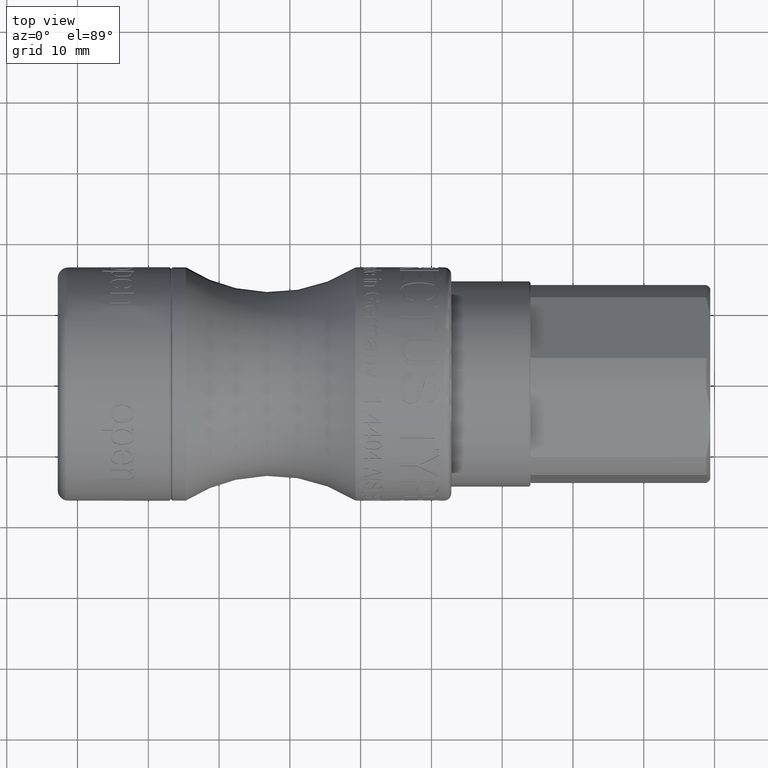
[diagram: clean part render]
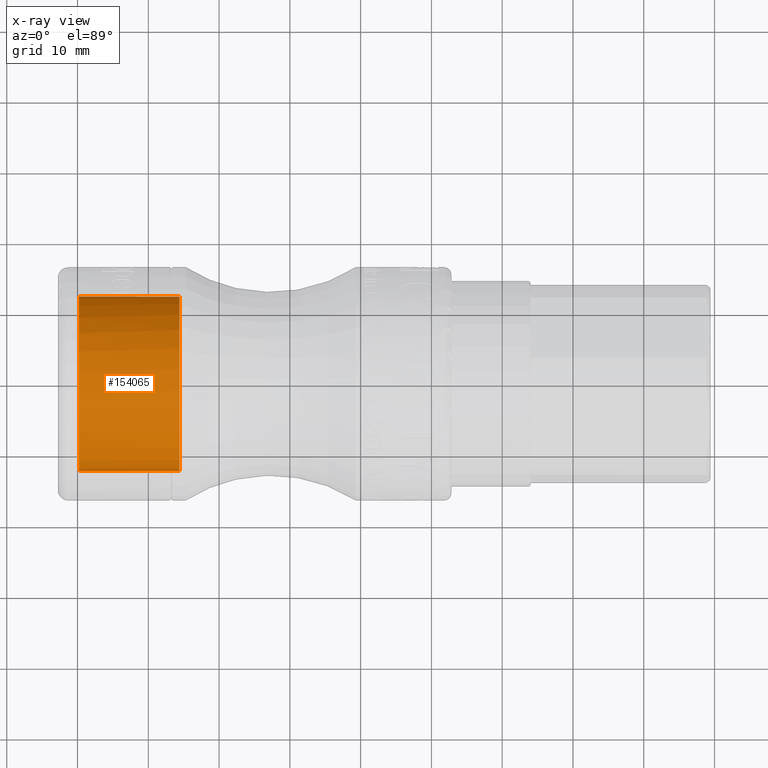
[diagram: x-ray — body ghosted, one internal face saturated and labeled with its STEP entity id]
A machine part, top view, then the same camera in x-ray: the body is ghosted and one INTERNAL B-rep face — a face not visible from any outside direction — is saturated and labeled: STEP entity #154065.
In plain terms, the highlighted cylindrical surface (bore or boss wall) has radius 12.3537 mm, axis along (1, 0, 0).
Its self-contained STEP definition (entity closure, byte-faithful):
#154038=CARTESIAN_POINT('',(36.293866951913493,0.0,0.0));
#154039=DIRECTION('',(1.0,0.0,0.0));
#154040=DIRECTION('',(0.0,1.0,0.0));
#154041=AXIS2_PLACEMENT_3D('',#154038,#154039,#154040);
#154042=CYLINDRICAL_SURFACE('',#154041,12.353705577724682);
#154043=CARTESIAN_POINT('',(0.2,-12.353705577724682,1.512893E-015));
#154044=VERTEX_POINT('',#154043);
#154045=CARTESIAN_POINT('',(0.2,0.0,0.0));
#154046=DIRECTION('',(-1.0,0.0,0.0));
#154047=DIRECTION('',(0.0,1.0,0.0));
#154048=AXIS2_PLACEMENT_3D('',#154045,#154046,#154047);
#154049=CIRCLE('',#154048,12.353705577724682);
#154050=EDGE_CURVE('',#154044,#154044,#154049,.T.);
#154051=ORIENTED_EDGE('',*,*,#154050,.F.);
#154052=EDGE_LOOP('',(#154051));
#154053=FACE_OUTER_BOUND('',#154052,.T.);
#154054=CARTESIAN_POINT('',(14.42129442227532,-12.353705577724682,-1.512893E-015));
#154055=VERTEX_POINT('',#154054);
#154056=CARTESIAN_POINT('',(14.42129442227532,0.0,0.0));
#154057=DIRECTION('',(1.0,0.0,0.0));
#154058=DIRECTION('',(0.0,1.0,0.0));
#154059=AXIS2_PLACEMENT_3D('',#154056,#154057,#154058);
#154060=CIRCLE('',#154059,12.353705577724682);
#154061=EDGE_CURVE('',#154055,#154055,#154060,.T.);
#154062=ORIENTED_EDGE('',*,*,#154061,.F.);
#154063=EDGE_LOOP('',(#154062));
#154064=FACE_BOUND('',#154063,.T.);
#154065=ADVANCED_FACE('',(#154053,#154064),#154042,.T.);